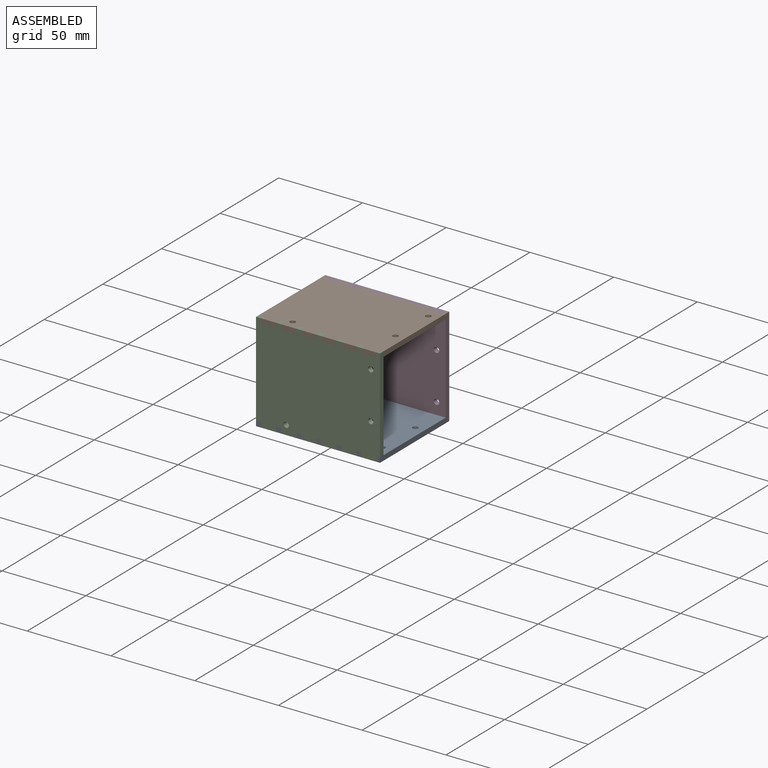
[diagram: assembled view]
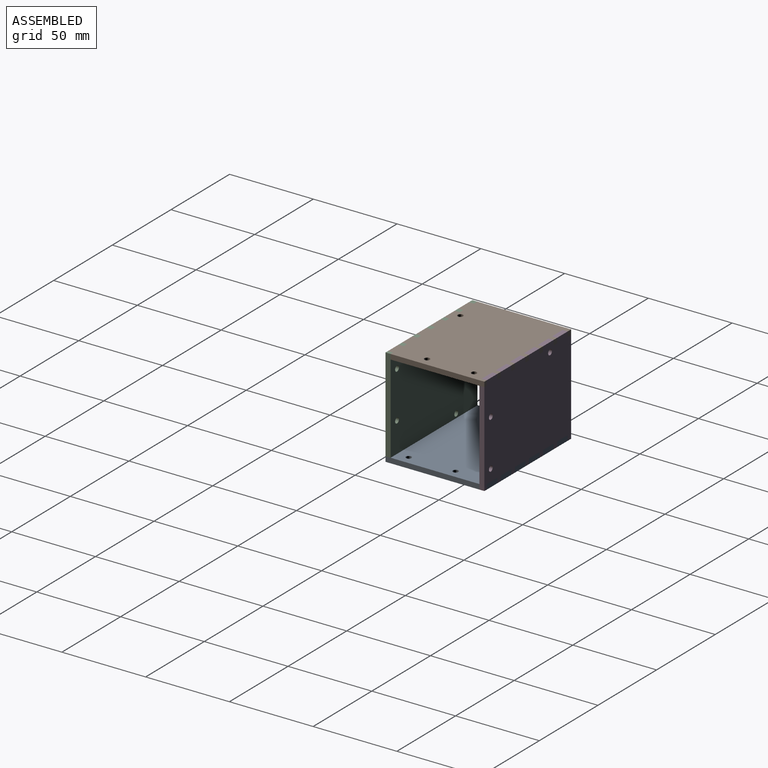
[diagram: assembled view, second angle]
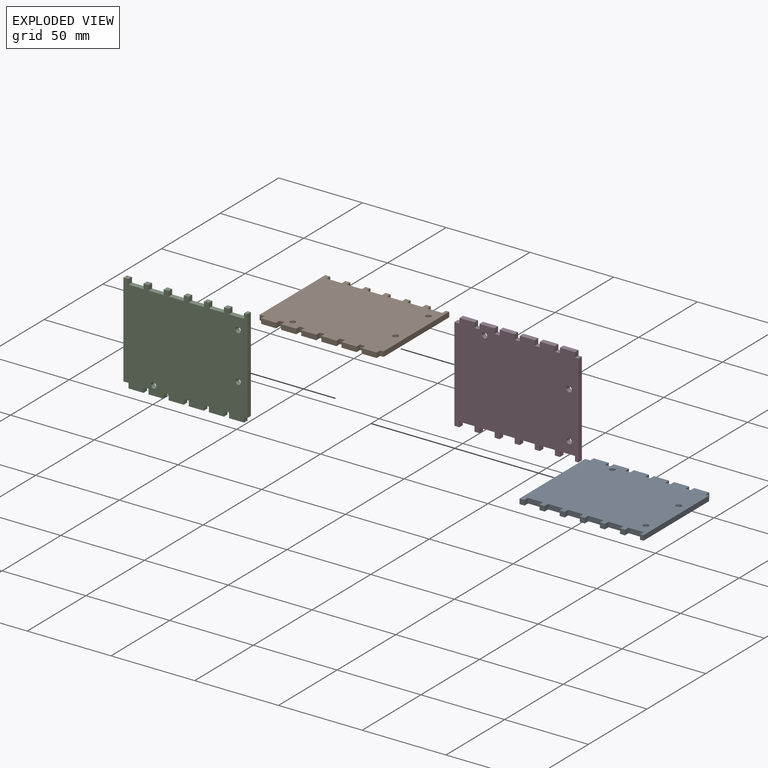
[diagram: exploded view]
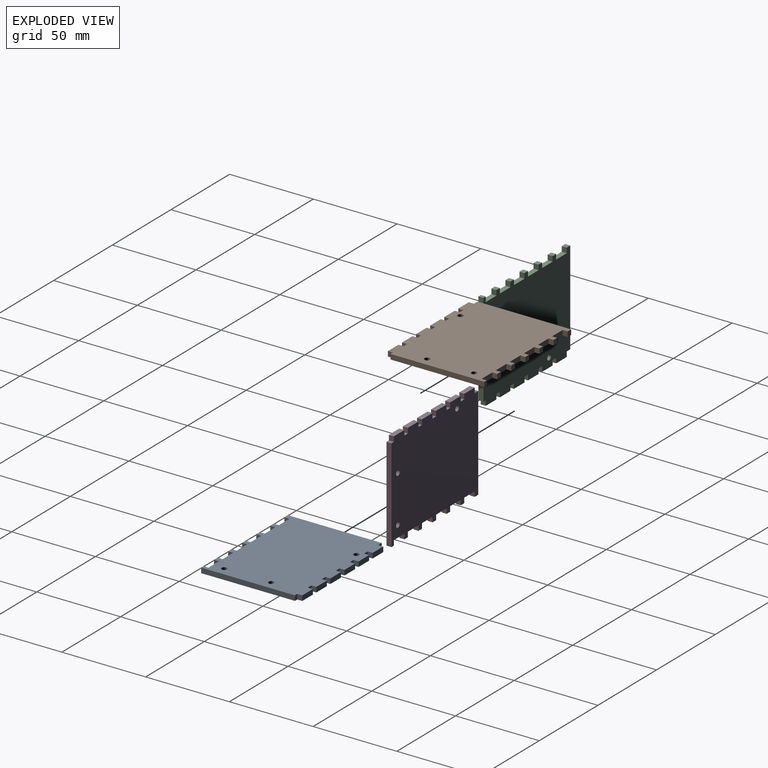
[diagram: exploded view, second angle]
ASSEMBLY  parts=4 mates=3
PART A: 57 faces, bbox 74x59x3 mm
  f0: plane 3x3mm, normal (-1,0,0), area 9mm2, adj f1,f54,f55,f56
  f1: plane 3x3mm, normal (0,-1,0), area 9mm2, adj f0,f2,f55,f56
  f2: plane 3x3mm, normal (1,0,0), area 9mm2, adj f1,f3,f55,f56
  f3: plane 9x3mm, normal (0,-1,0), area 27mm2, adj f2,f4,f55,f56
  f4: plane 3x3mm, normal (-1,0,0), area 9mm2, adj f3,f5,f55,f56
  f5: plane 3x3mm, normal (0,-1,0), area 9mm2, adj f4,f6,f55,f56
  f6: plane 3x3mm, normal (1,0,0), area 9mm2, adj f5,f7,f55,f56
  f7: plane 9x3mm, normal (0,-1,0), area 27mm2, adj f6,f8,f55,f56
  f8: plane 3x3mm, normal (-1,0,0), area 9mm2, adj f7,f9,f55,f56
  f9: plane 3x2mm, normal (0,-1,0), area 6mm2, adj f8,f10,f55,f56
  f10: plane 56x3mm, normal (1,0,0), area 168mm2, adj f9,f11,f55,f56
  f11: plane 3x2mm, normal (0,1,0), area 6mm2, adj f10,f12,f55,f56
  f12: plane 3x3mm, normal (1,0,0), area 9mm2, adj f11,f13,f55,f56
  f13: plane 9x3mm, normal (0,1,0), area 27mm2, adj f12,f14,f55,f56
  f14: plane 3x3mm, normal (-1,0,0), area 9mm2, adj f13,f15,f55,f56
  f15: plane 3x3mm, normal (0,1,0), area 9mm2, adj f14,f16,f55,f56
  f16: plane 3x3mm, normal (1,0,0), area 9mm2, adj f15,f17,f55,f56
  f17: plane 9x3mm, normal (0,1,0), area 27mm2, adj f16,f18,f55,f56
  f18: plane 3x3mm, normal (-1,0,0), area 9mm2, adj f17,f19,f55,f56
  f19: plane 3x3mm, normal (0,1,0), area 9mm2, adj f18,f20,f55,f56
  f20: plane 3x3mm, normal (1,0,0), area 9mm2, adj f19,f21,f55,f56
  f21: plane 9x3mm, normal (0,1,0), area 27mm2, adj f20,f22,f55,f56
  f22: plane 3x3mm, normal (-1,0,0), area 9mm2, adj f21,f23,f55,f56
  f23: plane 3x3mm, normal (0,1,0), area 9mm2, adj f22,f24,f55,f56
  f24: plane 3x3mm, normal (1,0,0), area 9mm2, adj f23,f25,f55,f56
  f25: plane 9x3mm, normal (0,1,0), area 27mm2, adj f24,f26,f55,f56
  f26: plane 3x3mm, normal (-1,0,0), area 9mm2, adj f25,f27,f55,f56
  f27: plane 3x3mm, normal (0,1,0), area 9mm2, adj f26,f28,f55,f56
  f28: plane 3x3mm, normal (1,0,0), area 9mm2, adj f27,f29,f55,f56
  f29: plane 9x3mm, normal (0,1,0), area 27mm2, adj f28,f30,f55,f56
  f30: plane 3x3mm, normal (-1,0,0), area 9mm2, adj f29,f31,f55,f56
  f31: plane 3x3mm, normal (0,1,0), area 9mm2, adj f30,f32,f55,f56
  f32: plane 3x3mm, normal (1,0,0), area 9mm2, adj f31,f33,f55,f56
  f33: plane 9x3mm, normal (0,1,0), area 27mm2, adj f32,f34,f55,f56
  f34: plane 3x3mm, normal (-1,0,0), area 9mm2, adj f33,f35,f55,f56
  f35: plane 3x3mm, normal (0,1,0), area 9mm2, adj f34,f36,f55,f56
  f36: plane 56x3mm, normal (-1,0,0), area 168mm2, adj f35,f37,f55,f56
  f37: plane 3x3mm, normal (0,-1,0), area 9mm2, adj f36,f38,f55,f56
  f38: plane 3x3mm, normal (1,0,0), area 9mm2, adj f37,f39,f55,f56
  f39: plane 9x3mm, normal (0,-1,0), area 27mm2, adj f38,f40,f55,f56
  f40: plane 3x3mm, normal (-1,0,0), area 9mm2, adj f39,f41,f55,f56
  f41: plane 3x3mm, normal (0,-1,0), area 9mm2, adj f40,f42,f55,f56
  f42: plane 3x3mm, normal (1,0,0), area 9mm2, adj f41,f43,f55,f56
  f43: plane 9x3mm, normal (0,-1,0), area 27mm2, adj f42,f44,f55,f56
  f44: plane 3x3mm, normal (-1,0,0), area 9mm2, adj f43,f45,f55,f56
  f45: plane 3x3mm, normal (0,-1,0), area 9mm2, adj f44,f46,f55,f56
  f46: plane 3x3mm, normal (1,0,0), area 9mm2, adj f45,f47,f55,f56
  f47: plane 9x3mm, normal (0,-1,0), area 27mm2, adj f46,f48,f55,f56
  f48: plane 3x3mm, normal (-1,0,0), area 9mm2, adj f47,f49,f55,f56
  f49: plane 3x3mm, normal (0,-1,0), area 9mm2, adj f48,f50,f55,f56
  f50: plane 3x3mm, normal (1,0,0), area 9mm2, adj f49,f54,f55,f56
  f51: cylinder r=1.6mm len=3.2mm, axis (0,0,-1), area 30.2mm2, adj f55,f56
  f52: cylinder r=1.6mm len=3.2mm, axis (0,0,-1), area 30.2mm2, adj f55,f56
  f53: cylinder r=1.6mm len=3.2mm, axis (0,0,-1), area 30.2mm2, adj f55,f56
  f54: plane 9x3mm, normal (0,-1,0), area 27mm2, adj f0,f50,f55,f56
  f55: plane 74x59mm, normal (0,0,1), area 4119.9mm2, adj f0,f1,f2,f3,f4,f5,f6,f7
  f56: plane 74x59mm, normal (0,0,-1), area 4119.9mm2, adj f0,f1,f2,f3,f4,f5,f6,f7
PART B: same geometry as A
PART C: same geometry as A
PART D: same geometry as A
PLACE A t=(-55.23,-15.07,9.34)mm
PLACE B rot(axis=(-1,0,0),180deg) t=(-55.23,-15.07,68.34)mm
PLACE C rot(axis=(-1,0,0),90deg) t=(-55.23,-44.57,38.84)mm
PLACE D rot(axis=(1,0,0),90deg) t=(-55.23,14.43,38.84)mm
MATE fastened B.f34 <-> C.f38  axis (-1,0,0) through (-89.23,-43.07,66.84)mm
MATE fastened D.f34 <-> B.f38  axis (-1,0,0) through (-89.23,12.93,66.84)mm
MATE fastened D.f6 <-> A.f14  axis (1,0,0) through (-29.23,12.93,10.84)mm
